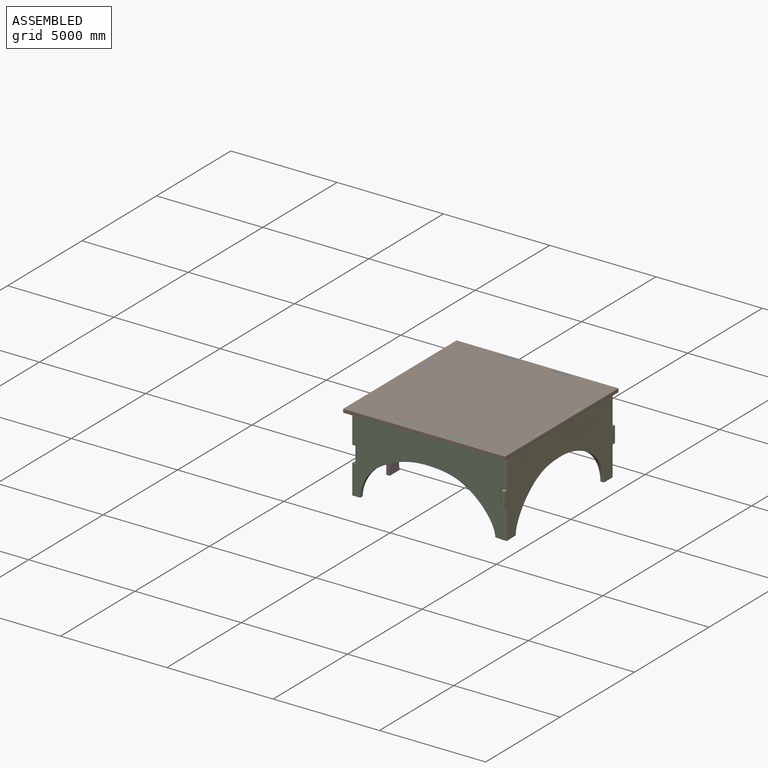
[diagram: assembled view]
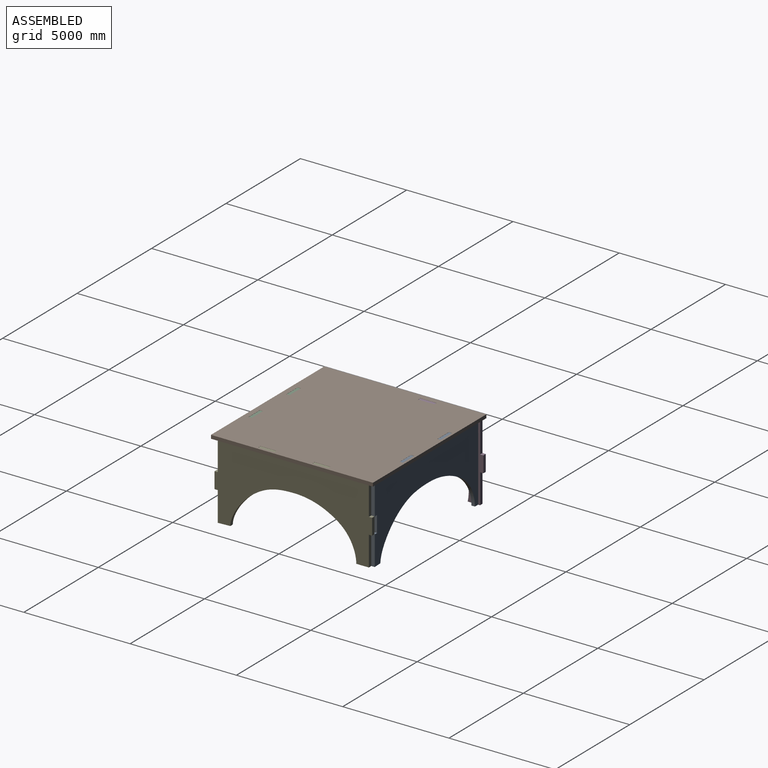
[diagram: assembled view, second angle]
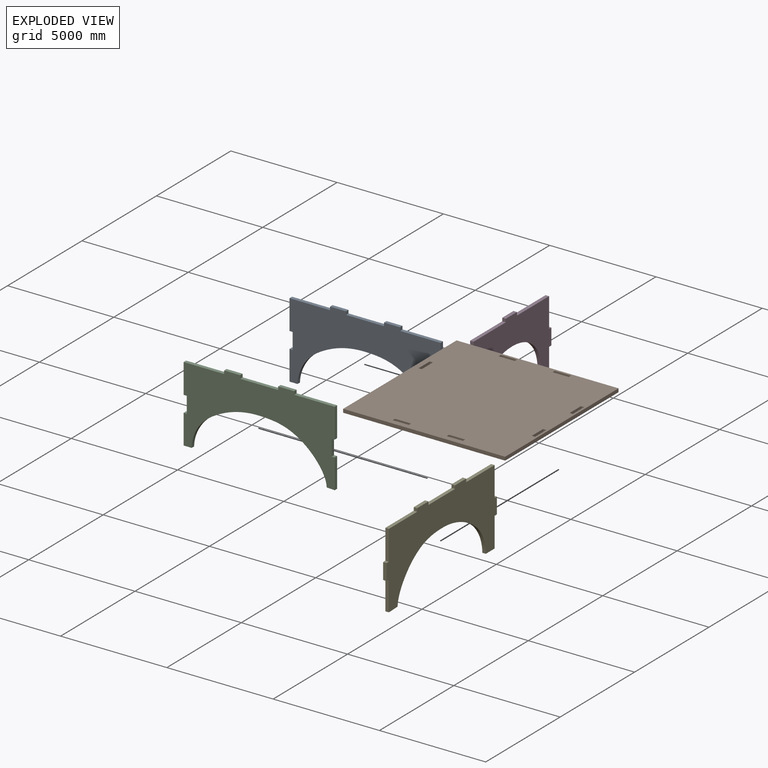
[diagram: exploded view]
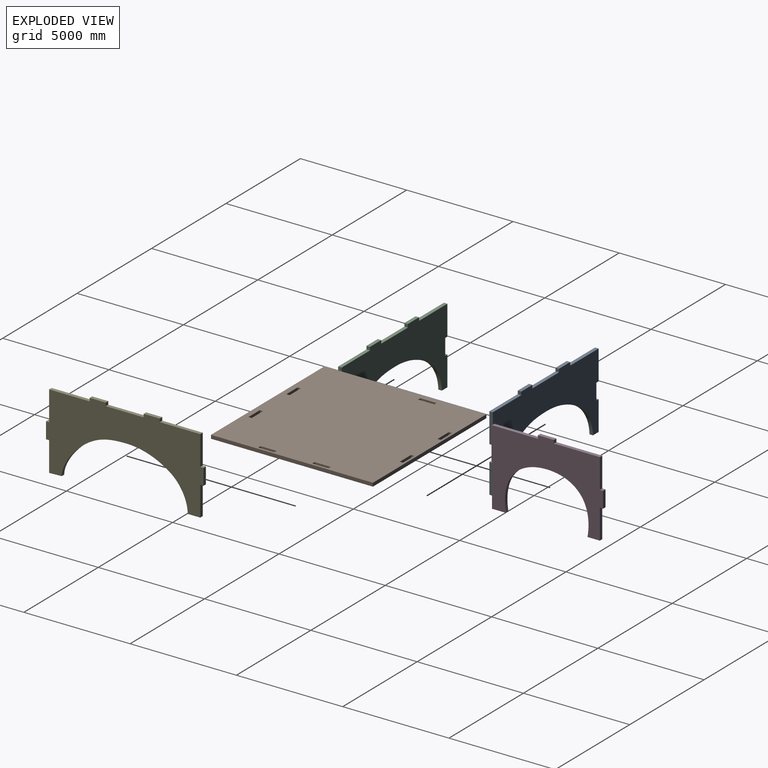
[diagram: exploded view, second angle]
ASSEMBLY  parts=5 mates=3
PART A: 27 faces, bbox 7105.8x3701.7x165.1 mm
  f0: plane 377.89x165.1mm, normal (0,1,0), area 62390.2mm2, adj f1,f24,f25,f26
  f1: plane 1391.67x165.1mm, normal (-1,0,0), area 229765.1mm2, adj f0,f2,f25,f26
  f2: plane 165.1x146.38mm, normal (0,-1,0), area 24167.4mm2, adj f1,f3,f25,f26
  f3: plane 761.3x165.1mm, normal (-1,0,0), area 125690.2mm2, adj f2,f4,f25,f26
  f4: plane 165.1x146.38mm, normal (0,1,0), area 24167.4mm2, adj f3,f5,f25,f26
  f5: plane 1396.75x165.1mm, normal (-1,0,0), area 230604.2mm2, adj f4,f6,f25,f26
  f6: plane 1905.39x165.1mm, normal (0,-1,0), area 314580.5mm2, adj f5,f7,f25,f26
  f7: plane 165.1x152.02mm, normal (-1,0,0), area 25098.7mm2, adj f6,f8,f25,f26
  f8: plane 754.97x165.1mm, normal (0,-1,0), area 124645.3mm2, adj f7,f9,f25,f26
  f9: plane 165.1x152.02mm, normal (1,0,0), area 25098.7mm2, adj f8,f10,f25,f26
  f10: plane 1785.03x165.1mm, normal (0,-1,0), area 294708mm2, adj f9,f11,f25,f26
  f11: plane 165.1x152.02mm, normal (-1,0,0), area 25098.7mm2, adj f10,f12,f25,f26
  f12: plane 754.97x165.1mm, normal (0,-1,0), area 124645.3mm2, adj f11,f13,f25,f26
  f13: plane 165.1x152.02mm, normal (1,0,0), area 25098.7mm2, adj f12,f14,f25,f26
  f14: plane 1905.39x165.1mm, normal (0,-1,0), area 314580.4mm2, adj f13,f15,f25,f26
  f15: plane 1396.75x165.1mm, normal (1,0,0), area 230604.2mm2, adj f14,f16,f25,f26
  f16: plane 165.1x146.38mm, normal (0,1,0), area 24167.4mm2, adj f15,f17,f25,f26
  f17: plane 761.3x165.1mm, normal (1,0,0), area 125690.2mm2, adj f16,f18,f25,f26
  f18: plane 165.1x146.38mm, normal (0,-1,0), area 24167.4mm2, adj f17,f19,f25,f26
  f19: plane 1391.67x165.1mm, normal (1,0,0), area 229765.1mm2, adj f18,f20,f25,f26
  f20: plane 377.87x165.1mm, normal (-0.05,1,0), area 62478mm2, adj f19,f21,f25,f26
  f21: extruded ~1693.85x1242.56mm, area 357517.5mm2, adj f20,f22,f25,f26
  f22: extruded ~1993.4x504.42mm, area 345001.1mm2, adj f21,f23,f25,f26
  f23: extruded ~2178.06x647.67mm, area 380452.4mm2, adj f22,f24,f25,f26
  f24: extruded ~1569.94x935.97mm, area 313659.6mm2, adj f0,f23,f25,f26
  f25: plane 7105.75x3701.75mm, normal (0,0,1), area 14305253.9mm2, adj f0,f1,f2,f3,f4,f5,f6,f7
  f26: plane 7105.75x3701.75mm, normal (0,0,-1), area 14305253.9mm2, adj f0,f1,f2,f3,f4,f5,f6,f7
PART B: 34 faces, bbox 7620x7620x165.1 mm
  f0: plane 7620x165.1mm, normal (0,1,0), area 1258062.1mm2, adj f1,f31,f32,f33
  f1: plane 7620x165.1mm, normal (-1,0,0), area 1258062.1mm2, adj f0,f2,f32,f33
  f2: plane 7620x165.1mm, normal (0,-1,0), area 1258062.1mm2, adj f1,f31,f32,f33
  f3: plane 165.1x151.31mm, normal (1,0,0), area 24980.8mm2, adj f4,f24,f32,f33
  f4: plane 755.82x165.1mm, normal (0,-1,0), area 124786.4mm2, adj f3,f5,f32,f33
  f5: plane 165.1x151.31mm, normal (-1,0,0), area 24980.8mm2, adj f4,f24,f32,f33
  f6: plane 165.1x151.31mm, normal (1,0,0), area 24980.8mm2, adj f7,f25,f32,f33
  f7: plane 755.82x165.1mm, normal (0,-1,0), area 124786.3mm2, adj f6,f8,f32,f33
  f8: plane 165.1x151.31mm, normal (-1,0,0), area 24980.8mm2, adj f7,f25,f32,f33
  f9: plane 755.81x165.1mm, normal (1,0,0), area 124783.8mm2, adj f10,f26,f32,f33
  f10: plane 165.1x151.31mm, normal (0,-1,0), area 24980.9mm2, adj f9,f11,f32,f33
  f11: plane 755.81x165.1mm, normal (-1,0,0), area 124785mm2, adj f10,f26,f32,f33
  f12: plane 755.8x165.1mm, normal (1,0,0), area 124782.7mm2, adj f13,f27,f32,f33
  f13: plane 165.1x151.31mm, normal (0,-1,0), area 24980.9mm2, adj f12,f14,f32,f33
  f14: plane 755.82x165.1mm, normal (-1,0,0), area 124785.1mm2, adj f13,f27,f32,f33
  f15: plane 755.82x165.1mm, normal (1,0,0), area 124786.4mm2, adj f16,f28,f32,f33
  f16: plane 165.1x151.31mm, normal (0,-1,0), area 24980.8mm2, adj f15,f17,f32,f33
  f17: plane 755.82x165.1mm, normal (-1,0,0), area 124786.4mm2, adj f16,f28,f32,f33
  f18: plane 165.1x151.31mm, normal (1,0,0), area 24980.8mm2, adj f19,f29,f32,f33
  f19: plane 755.82x165.1mm, normal (0,-1,0), area 124786.4mm2, adj f18,f20,f32,f33
  f20: plane 165.1x151.31mm, normal (-1,0,0), area 24980.8mm2, adj f19,f29,f32,f33
  f21: plane 165.1x151.31mm, normal (1,0,0), area 24980.8mm2, adj f22,f30,f32,f33
  f22: plane 755.82x165.1mm, normal (0,-1,0), area 124786.3mm2, adj f21,f23,f32,f33
  f23: plane 165.1x151.31mm, normal (-1,0,0), area 24980.8mm2, adj f22,f30,f32,f33
  f24: plane 755.82x165.1mm, normal (0,1,0), area 124786.4mm2, adj f3,f5,f32,f33
  f25: plane 755.82x165.1mm, normal (0,1,0), area 124786.3mm2, adj f6,f8,f32,f33
  f26: plane 165.1x151.31mm, normal (0,1,0), area 24980.9mm2, adj f9,f11,f32,f33
  f27: plane 165.1x151.31mm, normal (0,1,0), area 24980.9mm2, adj f12,f14,f32,f33
  f28: plane 165.1x151.31mm, normal (0,1,0), area 24980.8mm2, adj f15,f17,f32,f33
  f29: plane 755.82x165.1mm, normal (0,1,0), area 124786.4mm2, adj f18,f20,f32,f33
  f30: plane 755.82x165.1mm, normal (0,1,0), area 124786.3mm2, adj f21,f23,f32,f33
  f31: plane 7620x165.1mm, normal (1,0,0), area 1258062.1mm2, adj f0,f2,f32,f33
  f32: plane 7620x7620mm, normal (0,0,1), area 57263878.1mm2, adj f0,f1,f2,f3,f4,f5,f6,f7
  f33: plane 7620x7620mm, normal (0,0,-1), area 57263878.1mm2, adj f0,f1,f2,f3,f4,f5,f6,f7
PART C: same geometry as A
PART D: 19 faces, bbox 3702x5226.6x165.1 mm
  f0: plane 661.88x165.1mm, normal (-1,0,0), area 109275.9mm2, adj f1,f16,f17,f18
  f1: plane 3550.14x165.1mm, normal (0,-1,0), area 586128.8mm2, adj f0,f2,f17,f18
  f2: plane 2159.59x165.1mm, normal (1,0,0), area 356548.6mm2, adj f1,f3,f17,f18
  f3: plane 165.1x151.81mm, normal (0,-1,0), area 25064.1mm2, adj f2,f4,f17,f18
  f4: plane 754.97x165.1mm, normal (1,0,0), area 124645.3mm2, adj f3,f5,f17,f18
  f5: plane 165.1x151.81mm, normal (0,1,0), area 25064.1mm2, adj f4,f6,f17,f18
  f6: plane 2159.58x165.1mm, normal (1,0,0), area 356546.3mm2, adj f5,f7,f17,f18
  f7: plane 1391.88x165.1mm, normal (0,1,0), area 229799.8mm2, adj f6,f8,f17,f18
  f8: plane 165.1x152.44mm, normal (1,0,0), area 25168.1mm2, adj f7,f9,f17,f18
  f9: plane 761.3x165.1mm, normal (0,1,0), area 125690.2mm2, adj f8,f10,f17,f18
  f10: plane 165.1x152.44mm, normal (-1,0,0), area 25168.1mm2, adj f9,f11,f17,f18
  f11: plane 1396.96x165.1mm, normal (0,1,0), area 230638.9mm2, adj f10,f12,f17,f18
  f12: plane 582.06x165.1mm, normal (-1,0,0), area 96097.8mm2, adj f11,f13,f17,f18
  f13: extruded ~507.55x165.1mm, area 84332.9mm2, adj f12,f14,f17,f18
  f14: extruded ~1965.08x1854.49mm, area 505348.8mm2, adj f13,f15,f17,f18
  f15: extruded ~1965.09x1854.49mm, area 505351.3mm2, adj f14,f16,f17,f18
  f16: extruded ~507.55x165.1mm, area 84319.7mm2, adj f0,f15,f17,f18
  f17: plane 5226.58x3701.96mm, normal (0,0,1), area 10324848mm2, adj f0,f1,f2,f3,f4,f5,f6,f7
  f18: plane 5226.58x3701.96mm, normal (0,0,-1), area 10324848mm2, adj f0,f1,f2,f3,f4,f5,f6,f7
PART E: 27 faces, bbox 3702x7411x165.1 mm
  f0: plane 589.72x165.1mm, normal (1,0,0), area 97362.2mm2, adj f1,f24,f25,f26
  f1: plane 1391.77x165.1mm, normal (0,1,0), area 229781.2mm2, adj f0,f2,f25,f26
  f2: plane 165.1x152.54mm, normal (1,0,0), area 25184.3mm2, adj f1,f3,f25,f26
  f3: plane 761.31x165.1mm, normal (0,1,0), area 125692.5mm2, adj f2,f4,f25,f26
  f4: plane 165.1x152.54mm, normal (-1,0,0), area 25184.3mm2, adj f3,f5,f25,f26
  f5: plane 1396.85x165.1mm, normal (0,1,0), area 230620.5mm2, adj f4,f6,f25,f26
  f6: plane 1905.07x165.1mm, normal (-1,0,0), area 314527.1mm2, adj f5,f7,f25,f26
  f7: plane 165.1x152.04mm, normal (0,1,0), area 25100.9mm2, adj f6,f8,f25,f26
  f8: plane 755.8x165.1mm, normal (-1,0,0), area 124781.7mm2, adj f7,f9,f25,f26
  f9: plane 165.1x152.04mm, normal (0,-1,0), area 25100.9mm2, adj f8,f10,f25,f26
  f10: plane 1784.2x165.1mm, normal (-1,0,0), area 294571.5mm2, adj f9,f11,f25,f26
  f11: plane 165.1x152.04mm, normal (0,1,0), area 25100.9mm2, adj f10,f12,f25,f26
  f12: plane 755.8x165.1mm, normal (-1,0,0), area 124781.7mm2, adj f11,f13,f25,f26
  f13: plane 165.1x152.04mm, normal (0,-1,0), area 25100.9mm2, adj f12,f14,f25,f26
  f14: plane 1905.07x165.1mm, normal (-1,0,0), area 314527.1mm2, adj f13,f15,f25,f26
  f15: plane 1396.85x165.1mm, normal (0,-1,0), area 230620.5mm2, adj f14,f16,f25,f26
  f16: plane 165.1x152.54mm, normal (-1,0,0), area 25184.3mm2, adj f15,f17,f25,f26
  f17: plane 761.31x165.1mm, normal (0,-1,0), area 125692.5mm2, adj f16,f18,f25,f26
  f18: plane 165.1x152.54mm, normal (1,0,0), area 25184.3mm2, adj f17,f19,f25,f26
  f19: plane 1391.77x165.1mm, normal (0,-1,0), area 229781.2mm2, adj f18,f20,f25,f26
  f20: plane 589.72x165.1mm, normal (1,0.03,0), area 97420.9mm2, adj f19,f21,f25,f26
  f21: extruded ~1693.97x1159.69mm, area 348837.8mm2, adj f20,f22,f25,f26
  f22: extruded ~1860.45x504.45mm, area 324065.2mm2, adj f21,f23,f25,f26
  f23: extruded ~2032.81x647.71mm, area 357806.3mm2, adj f22,f24,f25,f26
  f24: extruded ~1571.18x873.54mm, area 307739.5mm2, adj f0,f23,f25,f26
  f25: plane 7411.01x3701.97mm, normal (0,0,1), area 15488619.3mm2, adj f0,f1,f2,f3,f4,f5,f6,f7
  f26: plane 7411.01x3701.97mm, normal (0,0,-1), area 15488619.3mm2, adj f0,f1,f2,f3,f4,f5,f6,f7
PLACE A rot(axis=(-1,0,0),90deg) t=(743.12,8762.39,5193.78)mm
PLACE B t=(743.55,5206.5,862.41)mm
PLACE C rot(axis=(-1,0,0),90deg) t=(743.12,1650.4,5193.78)mm
PLACE D rot(axis=(0,-1,0),90deg) t=(-2778.11,5206.07,5062.93)mm
PLACE E rot(axis=(0,1,0),90deg) t=(4168.8,5206.51,5063.02)mm
MATE planar D.f3 <-> B.f28  axis (0,-1,0) through (-2860.66,6102.29,944.96)mm
MATE planar E.f7 <-> B.f13  axis (0,1,0) through (4251.35,6858.11,944.96)mm
MATE planar C.f7 <-> B.f6  axis (-1,0,0) through (-1031.31,1732.95,944.96)mm
